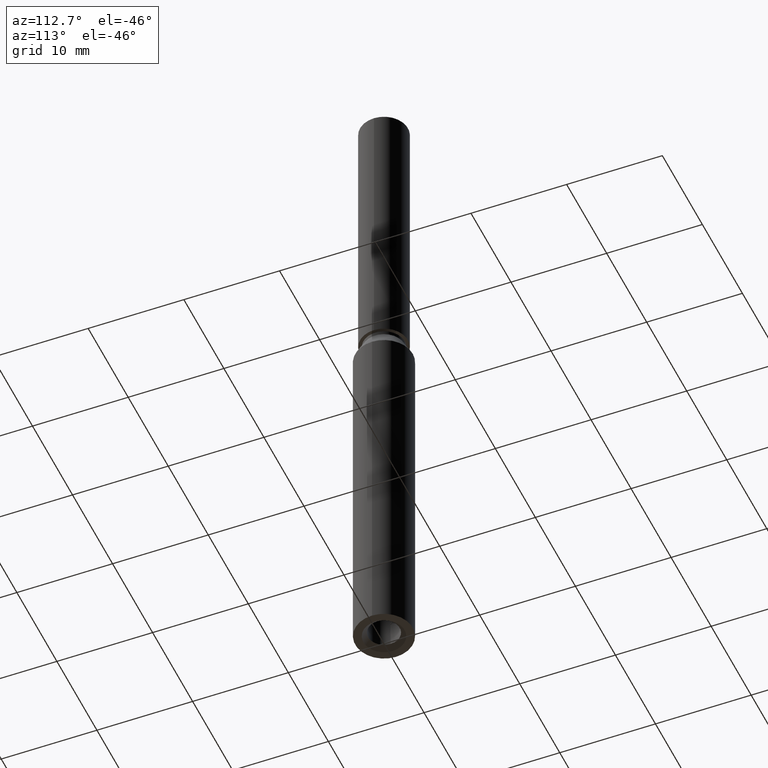
[diagram: clean part render]
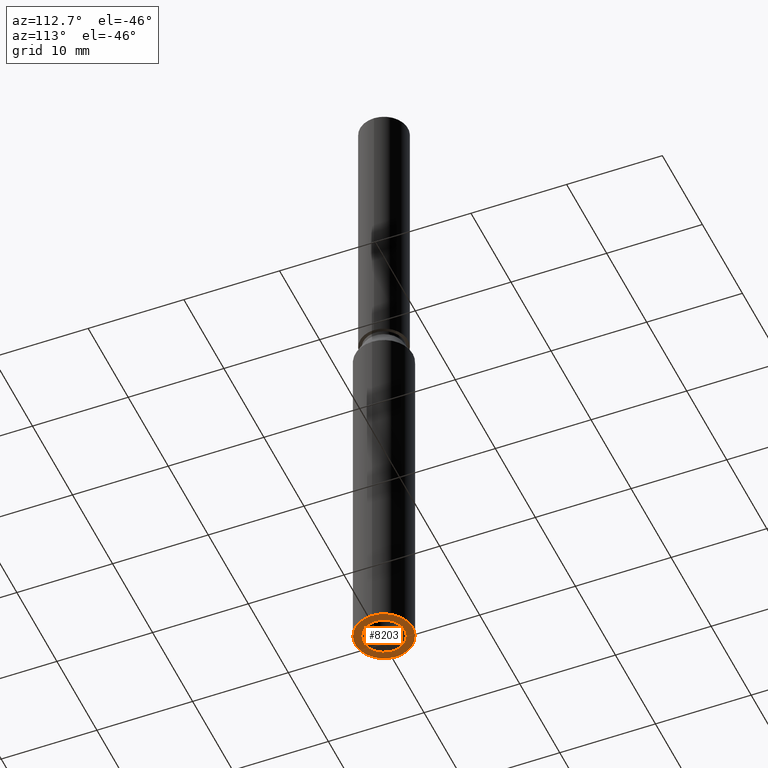
[diagram: same view with one face highlighted and labeled with its STEP entity id]
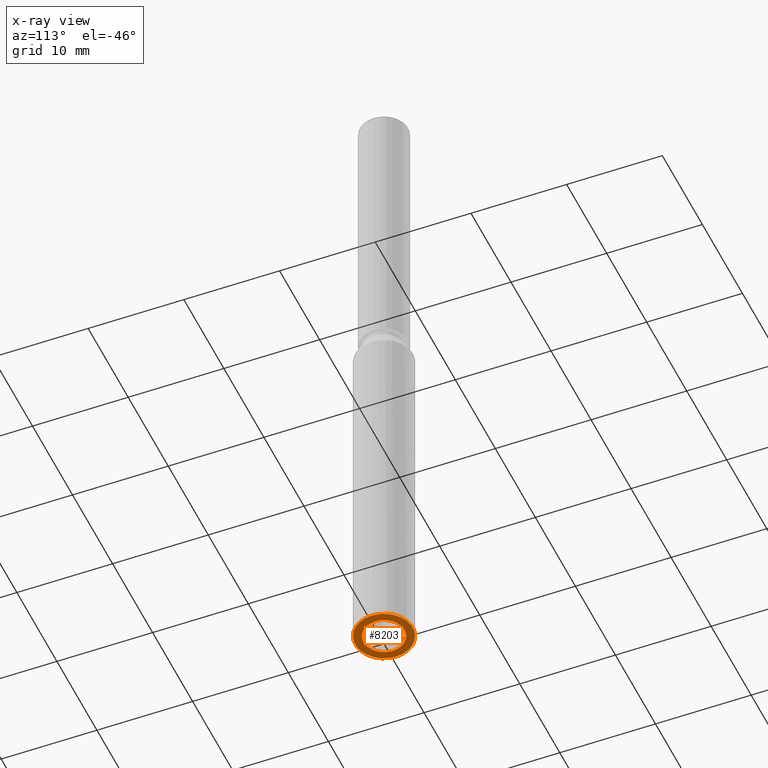
[diagram: x-ray of the same camera — body ghosted, the highlighted face saturated]
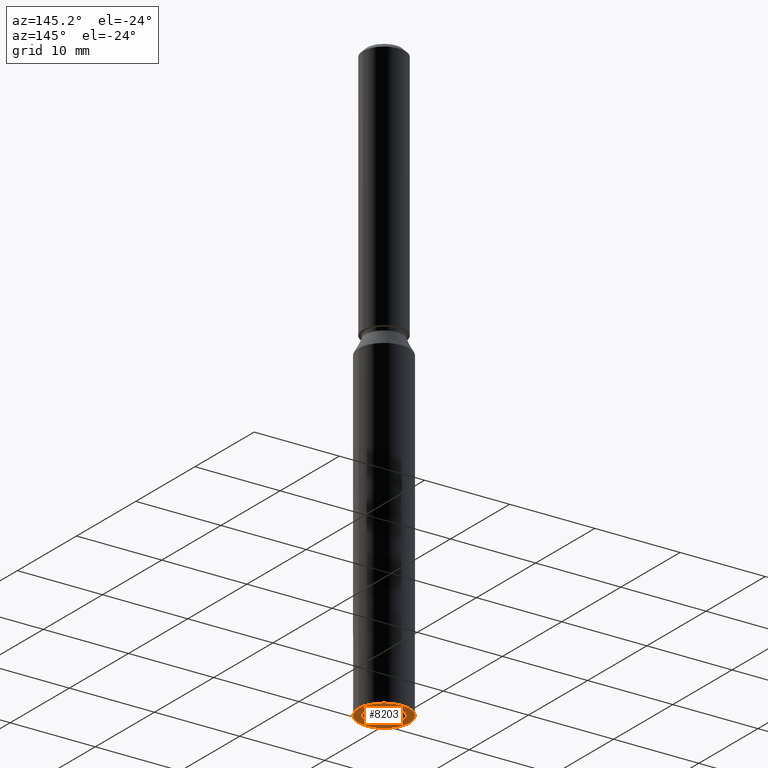
[diagram: same view with one face highlighted and labeled with its STEP entity id]
A machine part, auxiliary view. The second image highlights one B-rep face of the part: STEP entity #8203.
The next image is the same camera in x-ray: the body ghosted, the highlighted face saturated — about 0% of this face is hidden behind the body in this view.
A second angle (auxiliary view) of the same face is appended — the face is thin or edge-on in the first view.
In plain terms, the highlighted planar face has unit normal (0, 0, 1).
Its self-contained STEP definition (entity closure, byte-faithful):
#320 = PLANE ( 'NONE',  #13794 ) ;
#611 = ORIENTED_EDGE ( 'NONE', *, *, #8398, .F. ) ;
#815 = VERTEX_POINT ( 'NONE', #3379 ) ;
#829 = VERTEX_POINT ( 'NONE', #11288 ) ;
#954 = DIRECTION ( 'NONE',  ( 0.0000000000000000000, 0.0000000000000000000, 1.000000000000000000 ) ) ;
#1196 = AXIS2_PLACEMENT_3D ( 'NONE', #13372, #954, #11378 ) ;
#2220 = FACE_BOUND ( 'NONE', #13745, .T. ) ;
#2700 = DIRECTION ( 'NONE',  ( 0.0000000000000000000, 0.0000000000000000000, 1.000000000000000000 ) ) ;
#3379 = CARTESIAN_POINT ( 'NONE',  ( -3.000000000000000400, 0.0000000000000000000, 0.0000000000000000000 ) ) ;
#3586 = CIRCLE ( 'NONE', #5408, 2.149999999999999000 ) ;
#3727 = DIRECTION ( 'NONE',  ( 1.000000000000000000, 0.0000000000000000000, 0.0000000000000000000 ) ) ;
#3937 = ORIENTED_EDGE ( 'NONE', *, *, #7355, .T. ) ;
#4177 = CIRCLE ( 'NONE', #14566, 3.000000000000000400 ) ;
#5408 = AXIS2_PLACEMENT_3D ( 'NONE', #13525, #11205, #5563 ) ;
#5563 = DIRECTION ( 'NONE',  ( 1.000000000000000000, 0.0000000000000000000, 0.0000000000000000000 ) ) ;
#5843 = DIRECTION ( 'NONE',  ( 0.0000000000000000000, 0.0000000000000000000, 1.000000000000000000 ) ) ;
#6009 = ORIENTED_EDGE ( 'NONE', *, *, #12776, .T. ) ;
#6199 = CARTESIAN_POINT ( 'NONE',  ( -2.149999999999999000, 0.0000000000000000000, 0.0000000000000000000 ) ) ;
#6496 = CIRCLE ( 'NONE', #12849, 2.149999999999999000 ) ;
#7338 = EDGE_LOOP ( 'NONE', ( #611, #8816 ) ) ;
#7355 = EDGE_CURVE ( 'NONE', #14354, #829, #6496, .T. ) ;
#7721 = EDGE_CURVE ( 'NONE', #13567, #815, #8766, .T. ) ;
#7883 = CARTESIAN_POINT ( 'NONE',  ( 0.0000000000000000000, 0.0000000000000000000, 0.0000000000000000000 ) ) ;
#8203 = ADVANCED_FACE ( 'NONE', ( #2220, #11237 ), #320, .F. ) ;
#8398 = EDGE_CURVE ( 'NONE', #815, #13567, #4177, .T. ) ;
#8731 = CARTESIAN_POINT ( 'NONE',  ( 3.000000000000000400, 3.673940397442060400E-016, 0.0000000000000000000 ) ) ;
#8766 = CIRCLE ( 'NONE', #1196, 3.000000000000000400 ) ;
#8816 = ORIENTED_EDGE ( 'NONE', *, *, #7721, .F. ) ;
#10375 = DIRECTION ( 'NONE',  ( 1.000000000000000000, 0.0000000000000000000, 0.0000000000000000000 ) ) ;
#11205 = DIRECTION ( 'NONE',  ( 0.0000000000000000000, 0.0000000000000000000, 1.000000000000000000 ) ) ;
#11237 = FACE_OUTER_BOUND ( 'NONE', #7338, .T. ) ;
#11288 = CARTESIAN_POINT ( 'NONE',  ( 2.149999999999999000, 2.632990618166808200E-016, 0.0000000000000000000 ) ) ;
#11378 = DIRECTION ( 'NONE',  ( 1.000000000000000000, 0.0000000000000000000, 0.0000000000000000000 ) ) ;
#11702 = CARTESIAN_POINT ( 'NONE',  ( 0.0000000000000000000, 0.0000000000000000000, 0.0000000000000000000 ) ) ;
#12524 = DIRECTION ( 'NONE',  ( 0.0000000000000000000, 0.0000000000000000000, 1.000000000000000000 ) ) ;
#12531 = CARTESIAN_POINT ( 'NONE',  ( 0.0000000000000000000, 0.0000000000000000000, 0.0000000000000000000 ) ) ;
#12776 = EDGE_CURVE ( 'NONE', #829, #14354, #3586, .T. ) ;
#12849 = AXIS2_PLACEMENT_3D ( 'NONE', #7883, #12524, #3727 ) ;
#13372 = CARTESIAN_POINT ( 'NONE',  ( 0.0000000000000000000, 0.0000000000000000000, 0.0000000000000000000 ) ) ;
#13525 = CARTESIAN_POINT ( 'NONE',  ( 0.0000000000000000000, 0.0000000000000000000, 0.0000000000000000000 ) ) ;
#13567 = VERTEX_POINT ( 'NONE', #8731 ) ;
#13745 = EDGE_LOOP ( 'NONE', ( #3937, #6009 ) ) ;
#13794 = AXIS2_PLACEMENT_3D ( 'NONE', #11702, #2700, #13814 ) ;
#13814 = DIRECTION ( 'NONE',  ( 1.000000000000000000, 0.0000000000000000000, -0.0000000000000000000 ) ) ;
#14354 = VERTEX_POINT ( 'NONE', #6199 ) ;
#14566 = AXIS2_PLACEMENT_3D ( 'NONE', #12531, #5843, #10375 ) ;